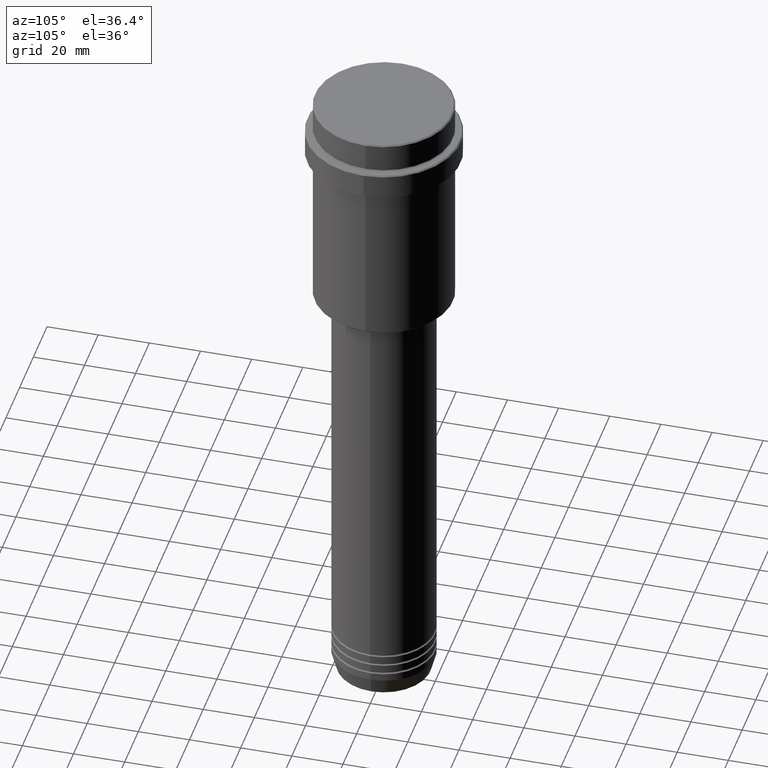
[diagram: clean part render]
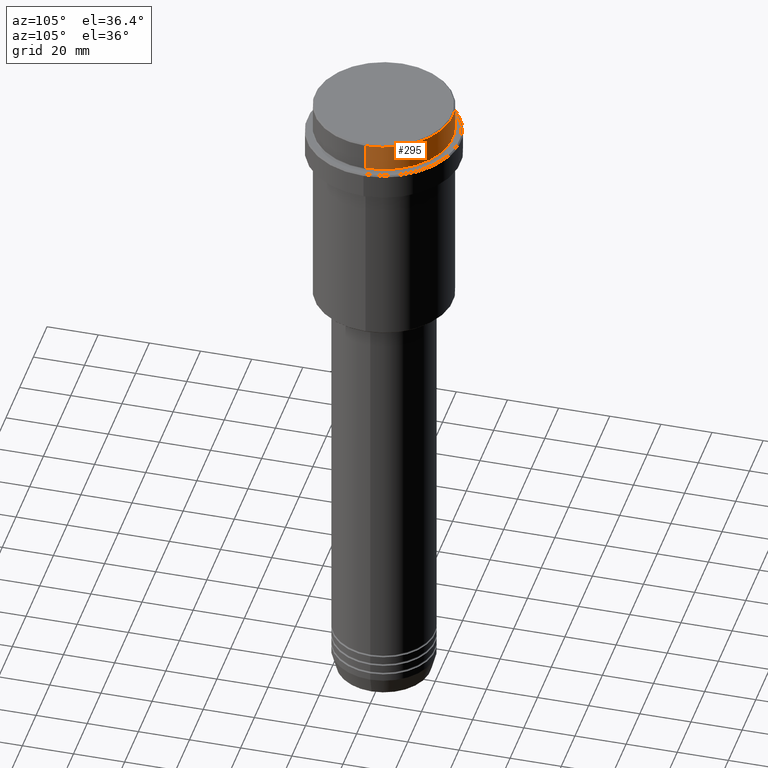
[diagram: same view with one face highlighted and labeled with its STEP entity id]
A machine part, auxiliary view. The second image highlights one B-rep face of the part: STEP entity #295.
In plain terms, the highlighted cylindrical surface (partial cylindrical patch) has radius 27 mm, axis along (-0, -0, 1).
Its self-contained STEP definition (entity closure, byte-faithful):
#182 = EDGE_CURVE ( 'NONE', #328, #672, #1406, .T. ) ;
#226 = CARTESIAN_POINT ( 'NONE',  ( 0.000000000000000000, 0.000000000000000000, 0.000000000000000000 ) ) ;
#295 = ADVANCED_FACE ( 'NONE', ( #1069 ), #1204, .T. ) ;
#306 = DIRECTION ( 'NONE',  ( -0.000000000000000000, -0.000000000000000000, 1.000000000000000000 ) ) ;
#328 = VERTEX_POINT ( 'NONE', #1309 ) ;
#356 = EDGE_CURVE ( 'NONE', #490, #328, #763, .T. ) ;
#482 = CARTESIAN_POINT ( 'NONE',  ( -26.99999999999999645, 3.306546357697853339E-15, -11.00000000000000178 ) ) ;
#490 = VERTEX_POINT ( 'NONE', #482 ) ;
#537 = CARTESIAN_POINT ( 'NONE',  ( 26.99999999999999645, 0.000000000000000000, -0.5000000000000038858 ) ) ;
#542 = ORIENTED_EDGE ( 'NONE', *, *, #182, .T. ) ;
#553 = DIRECTION ( 'NONE',  ( 1.000000000000000000, 0.000000000000000000, 0.000000000000000000 ) ) ;
#563 = ORIENTED_EDGE ( 'NONE', *, *, #356, .T. ) ;
#651 = CARTESIAN_POINT ( 'NONE',  ( 0.000000000000000000, 0.000000000000000000, -11.00000000000000178 ) ) ;
#672 = VERTEX_POINT ( 'NONE', #537 ) ;
#675 = DIRECTION ( 'NONE',  ( -0.000000000000000000, -0.000000000000000000, 1.000000000000000000 ) ) ;
#687 = DIRECTION ( 'NONE',  ( -0.000000000000000000, -0.000000000000000000, 1.000000000000000000 ) ) ;
#763 = LINE ( 'NONE', #1396, #1010 ) ;
#774 = VECTOR ( 'NONE', #306, 1000.000000000000000 ) ;
#798 = ORIENTED_EDGE ( 'NONE', *, *, #1038, .F. ) ;
#810 = AXIS2_PLACEMENT_3D ( 'NONE', #955, #1050, #1259 ) ;
#849 = DIRECTION ( 'NONE',  ( -0.000000000000000000, -0.000000000000000000, 1.000000000000000000 ) ) ;
#867 = VERTEX_POINT ( 'NONE', #1328 ) ;
#904 = AXIS2_PLACEMENT_3D ( 'NONE', #651, #675, #553 ) ;
#955 = CARTESIAN_POINT ( 'NONE',  ( 0.000000000000000000, 0.000000000000000000, -0.5000000000000038858 ) ) ;
#1010 = VECTOR ( 'NONE', #849, 1000.000000000000000 ) ;
#1038 = EDGE_CURVE ( 'NONE', #867, #672, #1167, .T. ) ;
#1050 = DIRECTION ( 'NONE',  ( 0.000000000000000000, 0.000000000000000000, -1.000000000000000000 ) ) ;
#1052 = CARTESIAN_POINT ( 'NONE',  ( 26.99999999999999645, 0.000000000000000000, 0.000000000000000000 ) ) ;
#1069 = FACE_OUTER_BOUND ( 'NONE', #1100, .T. ) ;
#1100 = EDGE_LOOP ( 'NONE', ( #1149, #563, #542, #798 ) ) ;
#1149 = ORIENTED_EDGE ( 'NONE', *, *, #1237, .T. ) ;
#1167 = LINE ( 'NONE', #1052, #774 ) ;
#1182 = DIRECTION ( 'NONE',  ( 1.000000000000000000, 0.000000000000000000, 0.000000000000000000 ) ) ;
#1204 = CYLINDRICAL_SURFACE ( 'NONE', #1314, 26.99999999999999645 ) ;
#1237 = EDGE_CURVE ( 'NONE', #867, #490, #1297, .T. ) ;
#1259 = DIRECTION ( 'NONE',  ( 1.000000000000000000, 0.000000000000000000, 0.000000000000000000 ) ) ;
#1297 = CIRCLE ( 'NONE', #904, 26.99999999999999645 ) ;
#1309 = CARTESIAN_POINT ( 'NONE',  ( -26.99999999999999645, 3.306546357697853339E-15, -0.5000000000000038858 ) ) ;
#1314 = AXIS2_PLACEMENT_3D ( 'NONE', #226, #687, #1182 ) ;
#1328 = CARTESIAN_POINT ( 'NONE',  ( 26.99999999999999645, 0.000000000000000000, -11.00000000000000178 ) ) ;
#1396 = CARTESIAN_POINT ( 'NONE',  ( -26.99999999999999645, 3.306546357697853339E-15, 0.000000000000000000 ) ) ;
#1406 = CIRCLE ( 'NONE', #810, 26.99999999999999645 ) ;